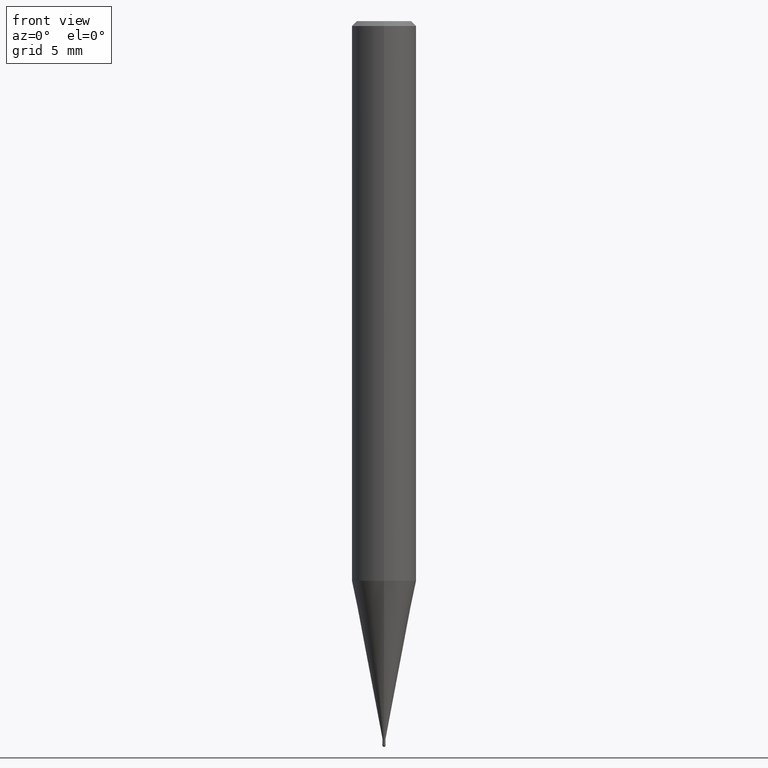
[diagram: clean part render]
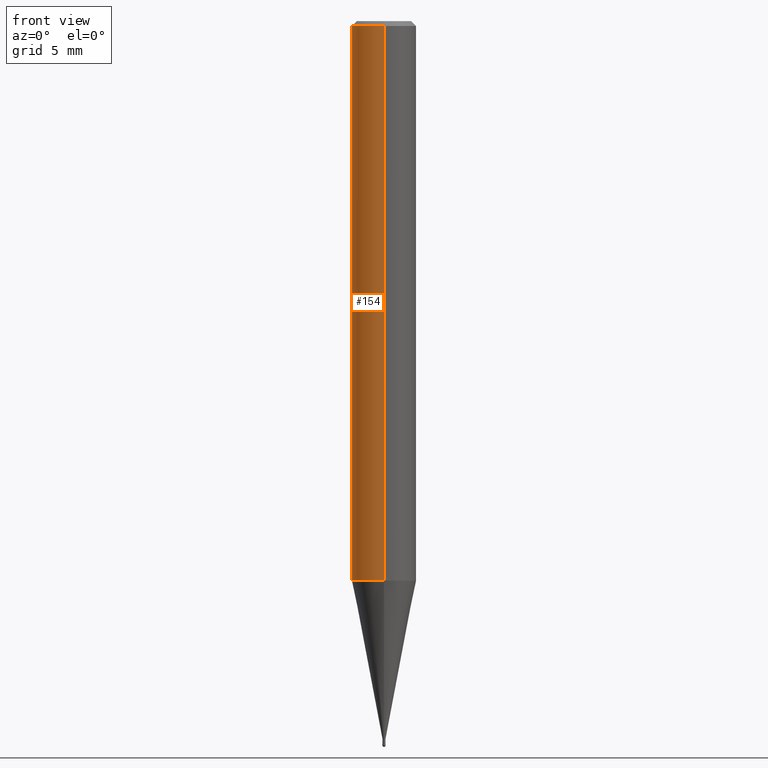
[diagram: same view with one face highlighted and labeled with its STEP entity id]
A machine part, front view. The second image highlights one B-rep face of the part: STEP entity #154.
In plain terms, the highlighted cylindrical surface (edge-blend (fillet) strip) has radius 2 mm, axis along (-0, -0, 1).
Its self-contained STEP definition (entity closure, byte-faithful):
#108=EDGE_CURVE('',#132,#142,#250,.T.);
#132=VERTEX_POINT('',#276);
#142=VERTEX_POINT('',#288);
#154=ADVANCED_FACE('',(#303),#304,.T.);
#176=EDGE_CURVE('',#142,#186,#329,.T.);
#186=VERTEX_POINT('',#340);
#188=EDGE_CURVE('',#132,#206,#342,.T.);
#204=EDGE_CURVE('',#186,#206,#359,.T.);
#206=VERTEX_POINT('',#361);
#250=LINE('',#408,#409);
#276=CARTESIAN_POINT('',(2.44921270764475E-016,-2.0,-34.7));
#288=CARTESIAN_POINT('',(2.44921270764475E-016,-2.0,-0.299999999999997));
#303=FACE_OUTER_BOUND('',#473,.T.);
#304=CYLINDRICAL_SURFACE('',#474,2.0);
#329=CIRCLE('',#505,2.0);
#340=CARTESIAN_POINT('',(0.0,2.0,-0.299999999999997));
#342=CIRCLE('',#521,2.0);
#359=LINE('',#543,#544);
#361=CARTESIAN_POINT('',(0.0,2.0,-34.7));
#408=CARTESIAN_POINT('',(2.44921270764475E-016,-2.0,-17.5));
#409=VECTOR('',#573,1.0);
#473=EDGE_LOOP('',(#642,#643,#644,#645));
#474=AXIS2_PLACEMENT_3D('',#646,#647,#648);
#505=AXIS2_PLACEMENT_3D('',#681,#682,#683);
#521=AXIS2_PLACEMENT_3D('',#696,#697,#698);
#543=CARTESIAN_POINT('',(-2.44921270764475E-016,2.0,-17.5));
#544=VECTOR('',#717,1.0);
#573=DIRECTION('',(-0.0,-0.0,1.0));
#642=ORIENTED_EDGE('',*,*,#204,.T.);
#643=ORIENTED_EDGE('',*,*,#188,.F.);
#644=ORIENTED_EDGE('',*,*,#108,.T.);
#645=ORIENTED_EDGE('',*,*,#176,.T.);
#646=CARTESIAN_POINT('',(0.0,0.0,-17.5));
#647=DIRECTION('',(-0.0,-0.0,1.0));
#648=DIRECTION('',(0.0,1.0,0.0));
#681=CARTESIAN_POINT('',(0.0,0.0,-0.299999999999997));
#682=DIRECTION('',(0.0,0.0,-1.0));
#683=DIRECTION('',(0.0,1.0,0.0));
#696=CARTESIAN_POINT('',(0.0,0.0,-34.7));
#697=DIRECTION('',(0.0,0.0,-1.0));
#698=DIRECTION('',(0.0,1.0,0.0));
#717=DIRECTION('',(0.0,0.0,-1.0));